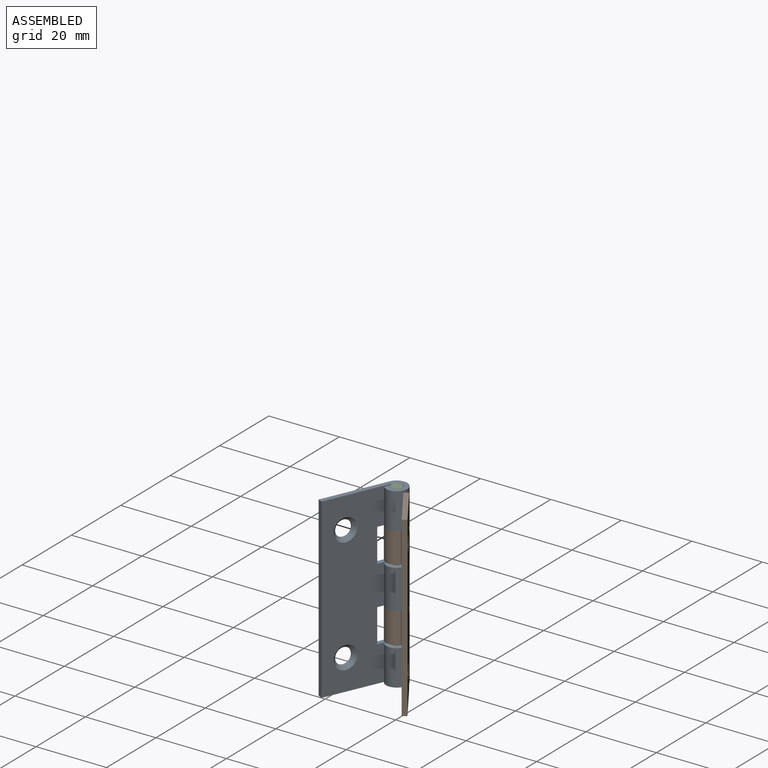
[diagram: assembled view]
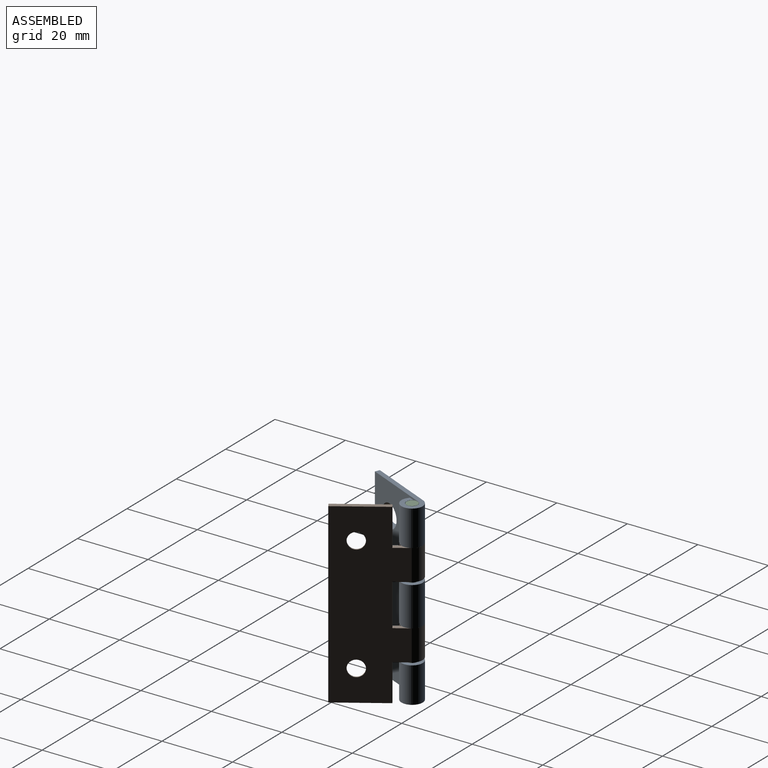
[diagram: assembled view, second angle]
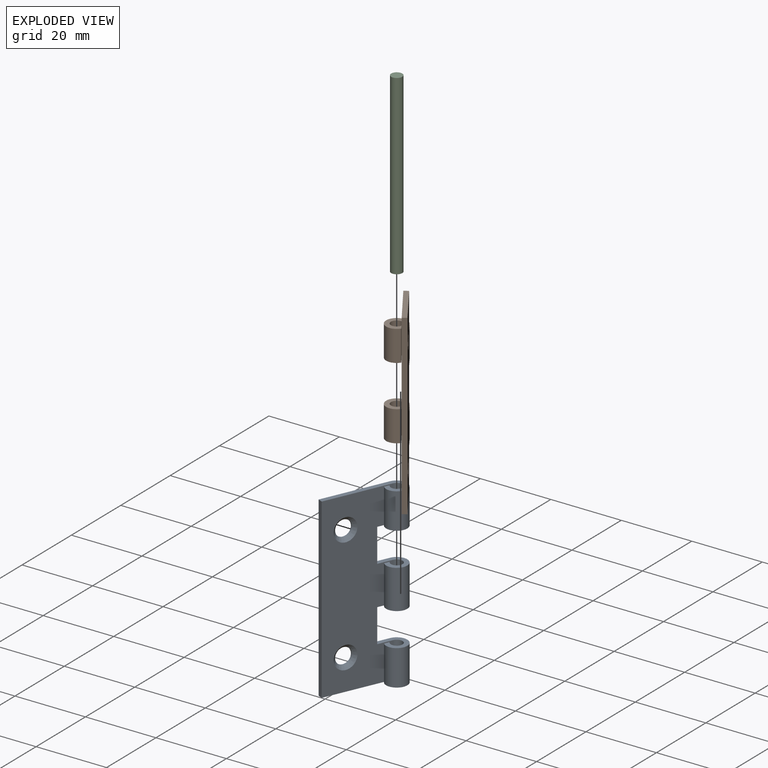
[diagram: exploded view]
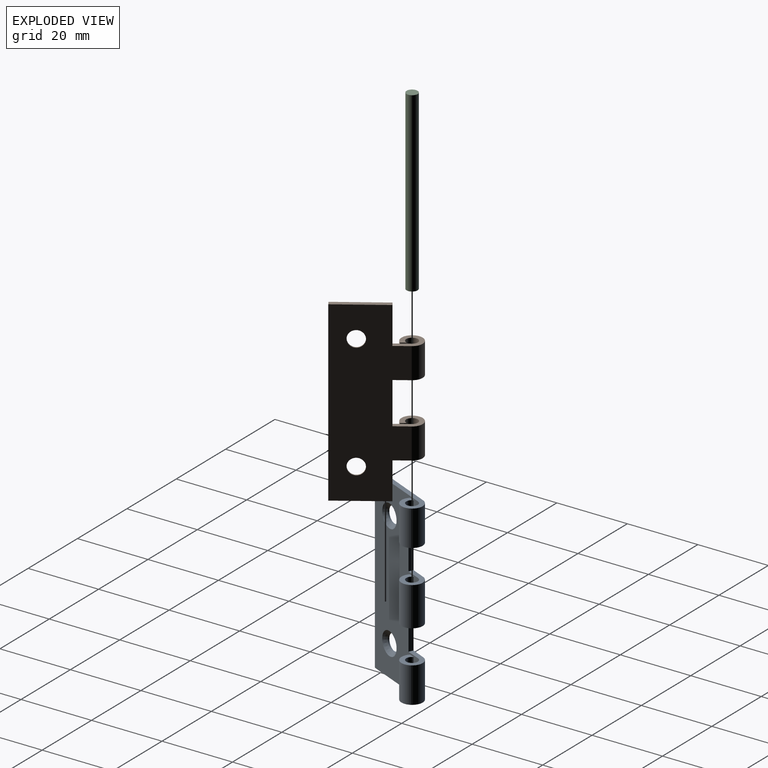
[diagram: exploded view, second angle]
ASSEMBLY  parts=3 mates=2
PART A: 24 faces, bbox 6x22.4x50.3 mm
  f0: cone r=2.75mm half-angle=45deg, axis (-1,0,0), area 23.4mm2, adj f1,f12
  f1: cylinder r=2.27mm len=4.53mm, axis (-1,0,0), area 5.6mm2, adj f0,f21
  f2: cone r=2.75mm half-angle=45deg, axis (-1,0,0), area 23.4mm2, adj f3,f12
  f3: cylinder r=2.27mm len=4.53mm, axis (-1,0,0), area 5.6mm2, adj f2,f21
  f4: plane 9.5x1.35mm, normal (0,1,0), area 12.8mm2, adj f5,f6,f12,f21
  f5: plane 7.3x6mm, normal (0,0,1), area 22.2mm2, adj f4,f10,f12,f13,f15,f21
  f6: plane 7.3x6mm, normal (0,0,-1), area 22.2mm2, adj f4,f12,f18,f19,f20,f21
  f7: plane 7.3x6mm, normal (0,0,-1), area 22.2mm2, adj f8,f10,f12,f13,f15,f21
  f8: plane 9.5x1.35mm, normal (0,1,0), area 12.8mm2, adj f7,f9,f12,f21
  f9: plane 7.3x6mm, normal (0,0,1), area 22.2mm2, adj f8,f11,f12,f14,f16,f21
  f10: cylinder r=3mm len=11.1mm, axis (0,0,1), area 169.8mm2, adj f5,f7,f13,f21
  f11: cylinder r=3mm len=10.12mm, axis (0,0,1), area 154.8mm2, adj f9,f14,f21,f23
  f12: plane 50.34x19.4mm, normal (-1,0,0), area 829.5mm2, adj f0,f2,f4,f5,f6,f7,f8,f9
  f13: plane 11.1x1.58mm, normal (1,0,0), area 17.5mm2, adj f5,f7,f10,f15
  f14: plane 10.12x1.58mm, normal (1,0,0), area 16mm2, adj f9,f11,f16,f23
  f15: cylinder r=1.65mm len=11.1mm, axis (0,0,1), area 100.2mm2, adj f5,f7,f12,f13
  f16: cylinder r=1.65mm len=10.12mm, axis (0,0,1), area 91.4mm2, adj f9,f12,f14,f23
  f17: plane 50.34x1.35mm, normal (0,-1,0), area 68mm2, adj f12,f21,f22,f23
  f18: cylinder r=1.65mm len=10.12mm, axis (0,0,1), area 91.4mm2, adj f6,f12,f19,f22
  f19: plane 10.12x1.58mm, normal (1,0,0), area 16mm2, adj f6,f18,f20,f22
  f20: cylinder r=3mm len=10.12mm, axis (0,0,1), area 154.8mm2, adj f6,f19,f21,f22
  f21: plane 50.34x19.4mm, normal (1,0,0), area 862.7mm2, adj f1,f3,f4,f5,f6,f7,f8,f9
  f22: plane 22.4x6mm, normal (0,0,1), area 42.6mm2, adj f12,f17,f18,f19,f20,f21
  f23: plane 22.4x6mm, normal (0,0,-1), area 42.6mm2, adj f11,f12,f14,f16,f17,f21
PART B: 22 faces, bbox 6x22.4x50.3 mm
  f0: plane 11.86x1.35mm, normal (0,1,0), area 16mm2, adj f1,f2,f8,f20
  f1: plane 7.5x6mm, normal (0,0,1), area 22.5mm2, adj f0,f8,f9,f10,f11,f20
  f2: plane 7.5x6mm, normal (0,0,-1), area 22.5mm2, adj f0,f8,f17,f18,f19,f20
  f3: plane 10.5x1.35mm, normal (0,1,0), area 14.2mm2, adj f4,f7,f8,f20
  f4: plane 7.5x6mm, normal (0,0,-1), area 22.5mm2, adj f3,f8,f9,f10,f11,f20
  f5: plane 7.5x6mm, normal (0,0,1), area 22.5mm2, adj f6,f8,f17,f18,f19,f20
  f6: plane 10.5x1.35mm, normal (0,1,0), area 14.2mm2, adj f5,f8,f20,f21
  f7: plane 14.9x1.35mm, normal (0,0,-1), area 20.1mm2, adj f3,f8,f16,f20
  f8: plane 50.34x19.4mm, normal (-1,0,0), area 763.4mm2, adj f0,f1,f2,f3,f4,f5,f6,f7
  f9: cylinder r=1.65mm len=8.74mm, axis (0,0,1), area 78.9mm2, adj f1,f4,f8,f10
  f10: plane 8.74x1.58mm, normal (1,0,0), area 13.8mm2, adj f1,f4,f9,f11
  f11: cylinder r=3mm len=8.74mm, axis (0,0,1), area 133.7mm2, adj f1,f4,f10,f20
  f12: cone r=2.75mm half-angle=45deg, axis (-1,0,0), area 23.4mm2, adj f8,f13
  f13: cylinder r=2.27mm len=4.53mm, axis (-1,0,0), area 5.6mm2, adj f12,f20
  f14: cone r=2.75mm half-angle=45deg, axis (-1,0,0), area 23.4mm2, adj f8,f15
  f15: cylinder r=2.27mm len=4.53mm, axis (-1,0,0), area 5.6mm2, adj f14,f20
  f16: plane 50.34x1.35mm, normal (0,-1,0), area 68mm2, adj f7,f8,f20,f21
  f17: cylinder r=1.65mm len=8.74mm, axis (0,0,1), area 78.9mm2, adj f2,f5,f8,f18
  f18: plane 8.74x1.58mm, normal (1,0,0), area 13.8mm2, adj f2,f5,f17,f19
  f19: cylinder r=3mm len=8.74mm, axis (0,0,1), area 133.7mm2, adj f2,f5,f18,f20
  f20: plane 50.34x19.4mm, normal (1,0,0), area 796.5mm2, adj f0,f1,f2,f3,f4,f5,f6,f7
  f21: plane 14.9x1.35mm, normal (0,0,1), area 20.1mm2, adj f6,f8,f16,f20
PART C: 3 faces, bbox 3.2x3.2x50.3 mm
  f0: cylinder r=1.57mm len=50.34mm, axis (0,0,1), area 498.2mm2, adj f1,f2
  f1: plane 3.15x3.15mm, normal (0,0,-1), area 7.8mm2, adj f0
  f2: plane 3.15x3.15mm, normal (0,0,1), area 7.8mm2, adj f0
PLACE A rot(axis=(-0.21,-0.98,0),180deg) t=(-10.57,55.56,7.41)mm
PLACE B rot(axis=(0,0,1),33.5deg) t=(-10.57,55.56,-42.55)mm fixed
PLACE C rot(axis=(0,0,1),0.8deg) t=(-10.57,55.56,-42.93)mm fixed
MATE revolute B.f9 <-> A.f10  axis (0,0,1) through (-10.57,55.56,-2.71)mm
MATE revolute A.f10 <-> C.f0  axis (0,0,-1) through (-10.57,55.56,7.41)mm
